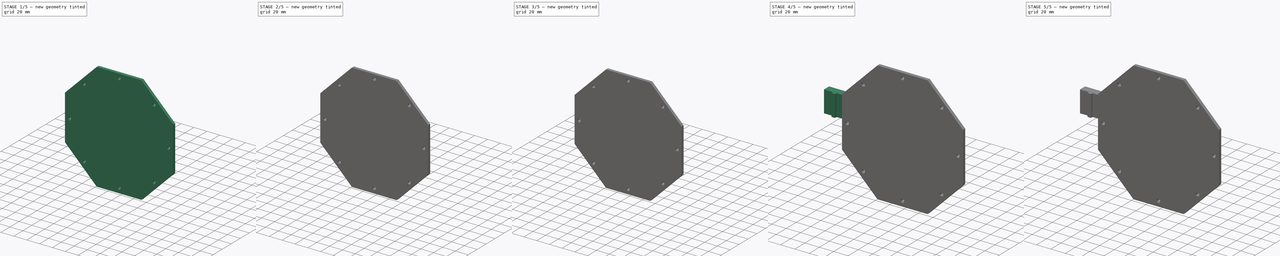
[diagram: build sequence overview — one tinted view per stage of 5, left to right]
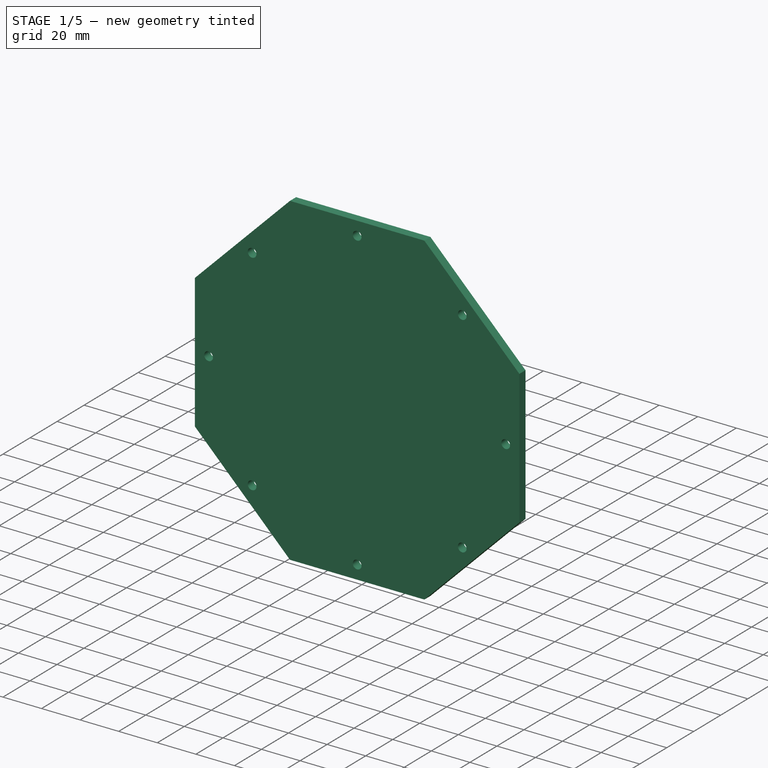
[diagram: stage 1 of 5 — iso view after this stage's code; geometry added in this stage tinted green]
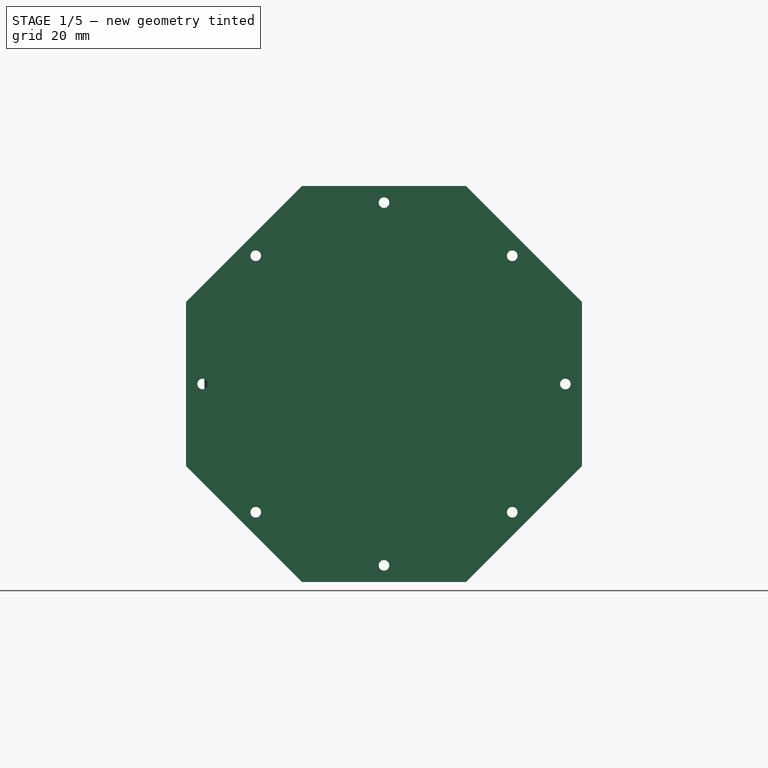
[diagram: stage 1 of 5 — front view after this stage's code; geometry added in this stage tinted green]
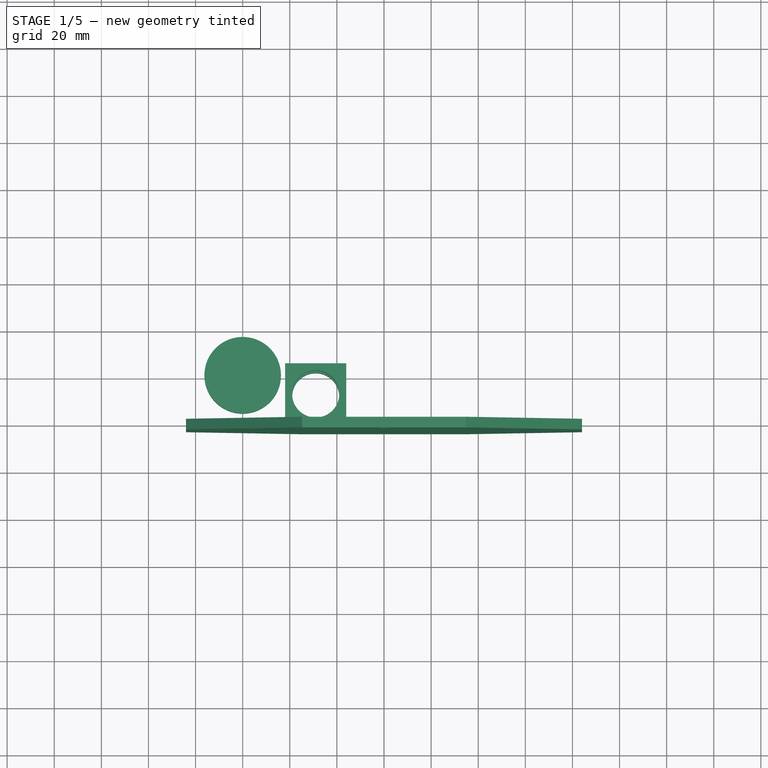
[diagram: stage 1 of 5 — top view after this stage's code; geometry added in this stage tinted green]
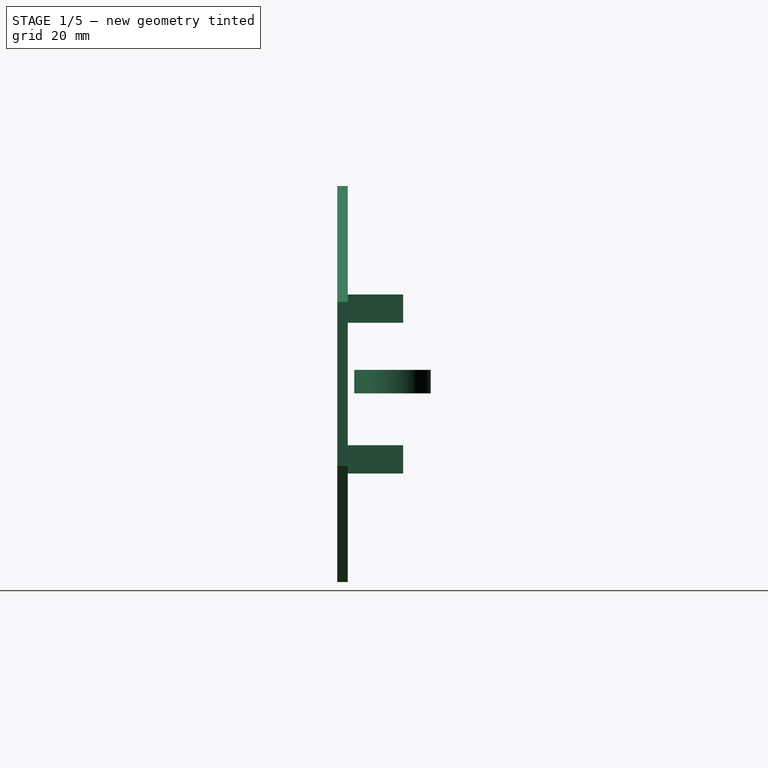
[diagram: stage 1 of 5 — right view after this stage's code; geometry added in this stage tinted green]
FCSTD DOCUMENT  (FreeCAD 0.17R13424 (Git))
Label: motor-stand2
License: All rights reserved
LicenseURL: http://en.wikipedia.org/wiki/All_rights_reserved
objects: Sketcher::SketchObject×18, Part::Extrusion×18, Part::Cut×8, Part::MultiFuse×7, Part::Cylinder×3, Part::FeaturePython×2
note: 56 computed .brp shape members not serialized (recipe doc carries the construction recipe); baked Part::Feature solids carry a one-line shape summary decoded from their .brp

FEATURE [Part::Cylinder] Cylinder001
  Angle = 360
  AttacherType = Attacher::AttachEngine3D
  Height = 10
  Placement = pos=(0,0,-4) rot=(0,0,1;0rad)
  Radius = 16.25
FEATURE [Sketcher::SketchObject] Sketch050
  sketch-geometry (5):
    g0: LineSegment StartX=-13 StartY=13 StartZ=0 EndX=-13 EndY=-15 EndZ=0
    g1: LineSegment StartX=-13 StartY=-15 StartZ=0 EndX=13 EndY=-15 EndZ=0
    g2: LineSegment StartX=13 StartY=-15 StartZ=0 EndX=13 EndY=13 EndZ=0
    g3: Circle CenterX=0 CenterY=0 CenterZ=0 NormalX=0 NormalY=0 NormalZ=1 AngleXU=0 Radius=10
    g4: LineSegment StartX=-13 StartY=13 StartZ=0 EndX=13 EndY=13 EndZ=0
  constraints (14):
    c: Coincident(g0,g1)
    c: Horizontal(g1)
    c: Coincident(g1,g2)
    c: Equal(g0,g2)
    c: DistanceY(g1,g-1) = 15
    c: Coincident(g3,g-1)
    c: Radius(g3) = 10
    c: Coincident(g4,g0)
    c: Coincident(g4,g2)
    c: Horizontal(g4)
    c: Symmetric(g2,g0,g-2)
    c: DistanceY(g0,g0) = 28
    c: DistanceX(g0,g2) = 26
    c: Equal(g1,g4)
FEATURE [Part::Extrusion] Extrude014
  Base = -> Sketch050
  Dir = (0,0,1)
  DirMode = 2
  FaceMakerClass = Part::FaceMakerBullseye
  LengthFwd = 12
  LengthRev = 0
  Placement = pos=(0,0,32) rot=(0,0,1;0rad)
  Solid = true
  Symmetric = true
FEATURE [Part::FeaturePython] Clone  label="Clone of Extrude014"  # Draft clone (typed FeaturePython)
  AttacherType = Attacher::AttachEngine3D
  Fuse = false
  Objects = -> [Extrude014]
  Placement = pos=(0,0,-32) rot=(0,0,1;0rad)
  Scale = (1,1,1)
FEATURE [Part::MultiFuse] Fusion004
  Placement = pos=(31,-8.5,0) rot=(0,0,1;0rad)
  Shapes = -> [Extrude014,Clone]
FEATURE [Sketcher::SketchObject] Sketch054
  sketch-geometry (9):
    g0: LineSegment StartX=84.073 StartY=-34.8242 StartZ=0 EndX=84.073 EndY=34.8242 EndZ=0
    g1: LineSegment StartX=84.073 StartY=34.8242 StartZ=0 EndX=34.8242 EndY=84.073 EndZ=0
    g2: LineSegment StartX=34.8242 StartY=84.073 StartZ=0 EndX=-34.8242 EndY=84.073 EndZ=0
    g3: LineSegment StartX=-34.8242 StartY=84.073 StartZ=0 EndX=-84.073 EndY=34.8242 EndZ=0
    g4: LineSegment StartX=-84.073 StartY=34.8242 StartZ=0 EndX=-84.073 EndY=-34.8242 EndZ=0
    g5: LineSegment StartX=-84.073 StartY=-34.8242 StartZ=0 EndX=-34.8242 EndY=-84.073 EndZ=0
    g6: LineSegment StartX=-34.8242 StartY=-84.073 StartZ=0 EndX=34.8242 EndY=-84.073 EndZ=0
    g7: LineSegment StartX=34.8242 StartY=-84.073 StartZ=0 EndX=84.073 EndY=-34.8242 EndZ=0
    g8: Circle [constr] CenterX=0 CenterY=0 CenterZ=0 NormalX=0 NormalY=0 NormalZ=1 AngleXU=0 Radius=91
  constraints (20):
    c: Coincident(g0,g1)
    c: Coincident(g1,g2)
    c: Coincident(g2,g3)
    c: Coincident(g3,g4)
    c: Coincident(g4,g5)
    c: Coincident(g5,g6)
    c: Coincident(g6,g7)
    c: Coincident(g7,g0)
    c: Equal(g0, g1-g7) x7
    c: PointOnObject(g0,g8)
    c: PointOnObject(g1,g8)
    c: PointOnObject(g2,g8)
    c: PointOnObject(g3,g8)
    c: PointOnObject(g4,g8)
    c: PointOnObject(g5,g8)
    c: PointOnObject(g6,g8)
    c: PointOnObject(g7,g8)
    c: Radius(g8) = 91
    c: Vertical(g0)
    c: Coincident(g8,g-1)
FEATURE [Part::Extrusion] Extrude018
  Base = -> Sketch054
  Dir = (0,0,1)
  DirMode = 2
  FaceMakerClass = Part::FaceMakerBullseye
  LengthFwd = 4.5
  LengthRev = 0
  Solid = true
  Symmetric = false
FEATURE [Part::Cylinder] Cylinder002
  Angle = 360
  AttacherType = Attacher::AttachEngine3D
  Height = 10
  Placement = pos=(-77,0,0) rot=(1,0,0;0rad)
  Radius = 2.25
FEATURE [Part::FeaturePython] Array  # Draft array (typed FeaturePython)
  Angle = 360
  ArrayType = 1
  Axis = (0,0,1)
  Base = -> Cylinder002
  Center = (0,0,0)
  Fuse = false
  IntervalAxis = (0,0,0)
  IntervalX = (1,0,0)
  IntervalY = (0,1,0)
  IntervalZ = (0,0,0)
  NumberPolar = 8
  NumberX = 2
  NumberY = 2
  NumberZ = 1
FEATURE [Part::Cut] Cut007
  Base = -> Extrude018
  Placement = pos=(60,-23.5,0) rot=(1,0,0;4.71239rad)
  Tool = -> Array
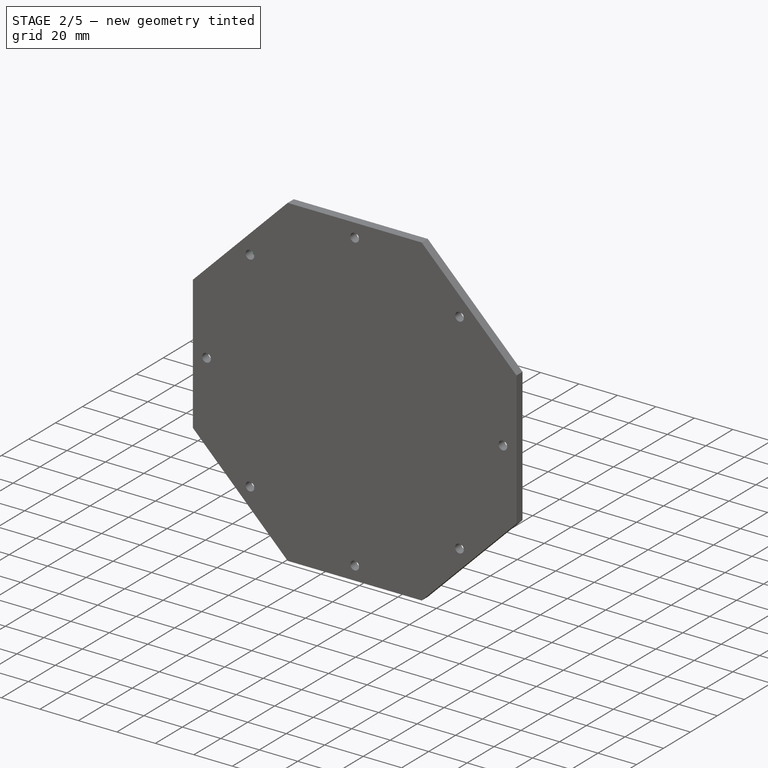
[diagram: stage 2 of 5 — iso view after this stage's code; geometry added in this stage tinted green]
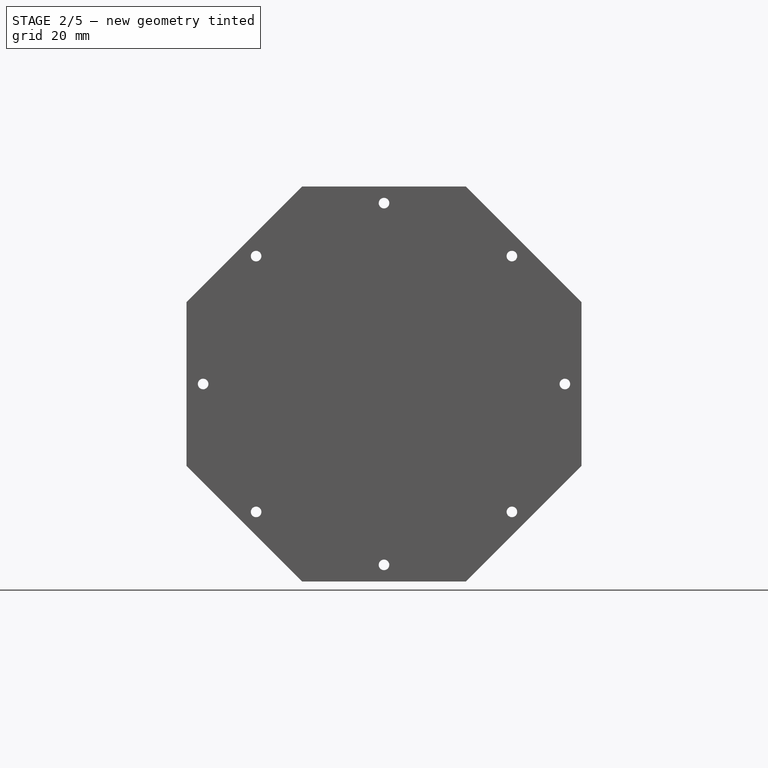
[diagram: stage 2 of 5 — front view after this stage's code; geometry added in this stage tinted green]
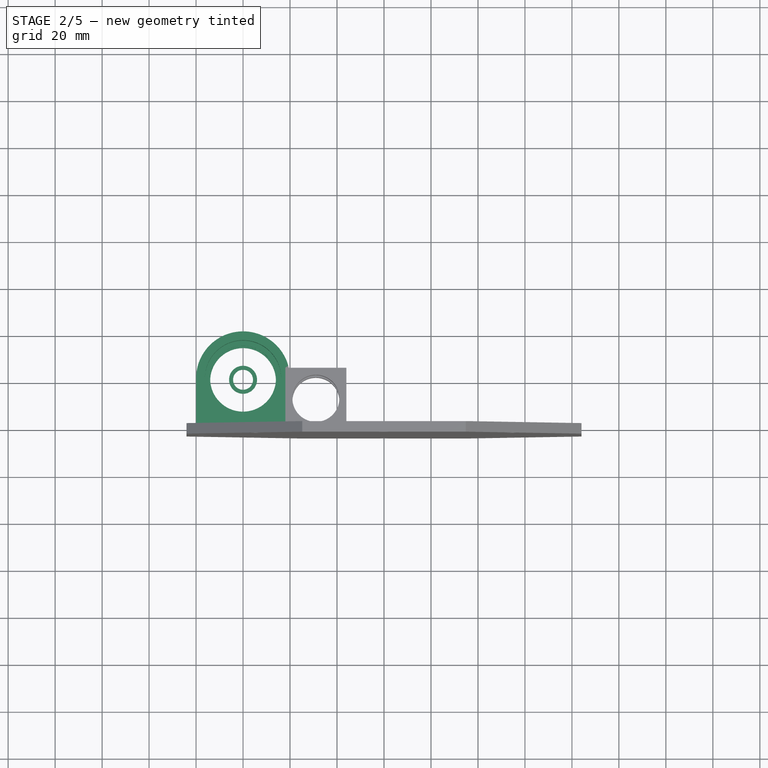
[diagram: stage 2 of 5 — top view after this stage's code; geometry added in this stage tinted green]
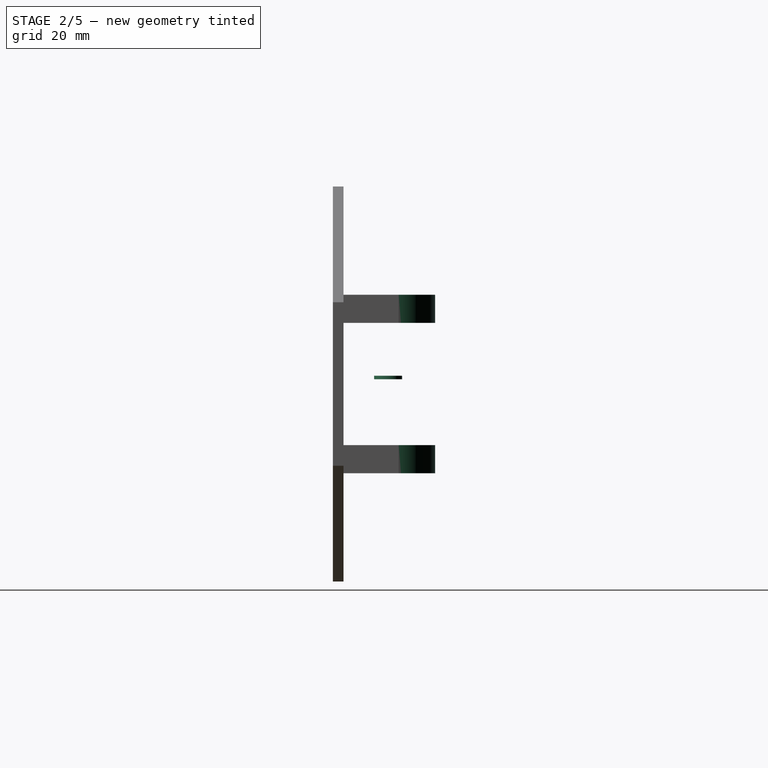
[diagram: stage 2 of 5 — right view after this stage's code; geometry added in this stage tinted green]
FEATURE [Sketcher::SketchObject] Sketch048
  MapMode = 5
  sketch-geometry (5):
    g0: ArcOfCircle CenterX=0 CenterY=0 CenterZ=0 NormalX=0 NormalY=0 NormalZ=1 AngleXU=0 Radius=20 StartAngle=0 EndAngle=3.14159
    g1: Circle CenterX=0 CenterY=0 CenterZ=0 NormalX=0 NormalY=0 NormalZ=1 AngleXU=0 Radius=14
    g2: LineSegment StartX=-20 StartY=0 StartZ=0 EndX=-20 EndY=-23.5 EndZ=0
    g3: LineSegment StartX=-20 StartY=-23.5 StartZ=0 EndX=20 EndY=-23.5 EndZ=0
    g4: LineSegment StartX=20 StartY=-23.5 StartZ=0 EndX=20 EndY=0 EndZ=0
  constraints (13):
    c: Coincident(g0,g-1)
    c: PointOnObject(g0,g-1)
    c: PointOnObject(g0,g-1)
    c: Coincident(g1,g-1)
    c: Tangent(g0,g2) = -1.5708
    c: Coincident(g2,g3)
    c: Horizontal(g3)
    c: Coincident(g3,g4)
    c: Coincident(g4,g0)
    c: Vertical(g4)
    c: Radius(g1) = 14
    c: Radius(g0) = 20
    c: DistanceY(g4,g4) = 23.5
FEATURE [Part::Extrusion] Extrude012  label="bearing-nest-l"
  Base = -> Sketch048
  Dir = (0,0,1)
  DirMode = 0
  FaceMakerClass = Part::FaceMakerExtrusion
  LengthFwd = 12
  LengthRev = 0
  Solid = true
  Symmetric = true
FEATURE [Sketcher::SketchObject] Sketch049
  MapMode = 5
  sketch-geometry (5):
    g0: ArcOfCircle CenterX=0 CenterY=0 CenterZ=0 NormalX=0 NormalY=0 NormalZ=1 AngleXU=0 Radius=20 StartAngle=0 EndAngle=3.14159
    g1: Circle CenterX=0 CenterY=0 CenterZ=0 NormalX=0 NormalY=0 NormalZ=1 AngleXU=0 Radius=14
    g2: LineSegment StartX=-20 StartY=0 StartZ=0 EndX=-20 EndY=-23.5 EndZ=0
    g3: LineSegment StartX=-20 StartY=-23.5 StartZ=0 EndX=20 EndY=-23.5 EndZ=0
    g4: LineSegment StartX=20 StartY=-23.5 StartZ=0 EndX=20 EndY=0 EndZ=0
  constraints (13):
    c: Coincident(g0,g-1)
    c: PointOnObject(g0,g-1)
    c: PointOnObject(g0,g-1)
    c: Coincident(g1,g-1)
    c: Tangent(g0,g2) = -1.5708
    c: Coincident(g2,g3)
    c: Horizontal(g3)
    c: Coincident(g3,g4)
    c: Coincident(g4,g0)
    c: Vertical(g4)
    c: Radius(g1) = 14
    c: Radius(g0) = 20
    c: DistanceY(g4,g4) = 23.5
FEATURE [Part::Extrusion] Extrude013  label="bearing-nest-r"
  Base = -> Sketch049
  Dir = (0,0,1)
  DirMode = 0
  FaceMakerClass = Part::FaceMakerExtrusion
  LengthFwd = 12
  LengthRev = 0
  Solid = true
  Symmetric = true
FEATURE [Part::Cylinder] Cylinder
  Angle = 360
  AttacherType = Attacher::AttachEngine3D
  Height = 10
  Placement = pos=(0,0,-6) rot=(0,0,1;0rad)
  Radius = 16.25
FEATURE [Part::Cut] Cut005
  Base = -> Extrude012
  Placement = pos=(0,0,-32) rot=(0,0,1;0rad)
  Tool = -> Cylinder
FEATURE [Part::Cut] Cut006
  Base = -> Extrude013
  Placement = pos=(0,0,32) rot=(0,0,1;0rad)
  Tool = -> Cylinder001
FEATURE [Sketcher::SketchObject] Sketch053
  MapMode = 5
  sketch-geometry (2):
    g0: Circle CenterX=0 CenterY=0 CenterZ=0 NormalX=0 NormalY=0 NormalZ=1 AngleXU=0 Radius=4.25
    g1: Circle CenterX=0 CenterY=0 CenterZ=0 NormalX=0 NormalY=0 NormalZ=1 AngleXU=0 Radius=5.95
  constraints (4):
    c: Coincident(g0,g-1)
    c: Coincident(g1,g-1)
    c: Radius(g0) = 4.25
    c: Radius(g1) = 5.95
FEATURE [Part::Extrusion] Extrude017
  Base = -> Sketch053
  Dir = (0,0,1)
  DirMode = 0
  FaceMakerClass = Part::FaceMakerExtrusion
  LengthFwd = 1.5
  LengthRev = 0
  Placement = pos=(0,0,2) rot=(0,0,1;0rad)
  Solid = true
  Symmetric = false
FEATURE [Part::MultiFuse] Fusion007
  Shapes = -> [Cut005,Cut006,Fusion004,Cut007]
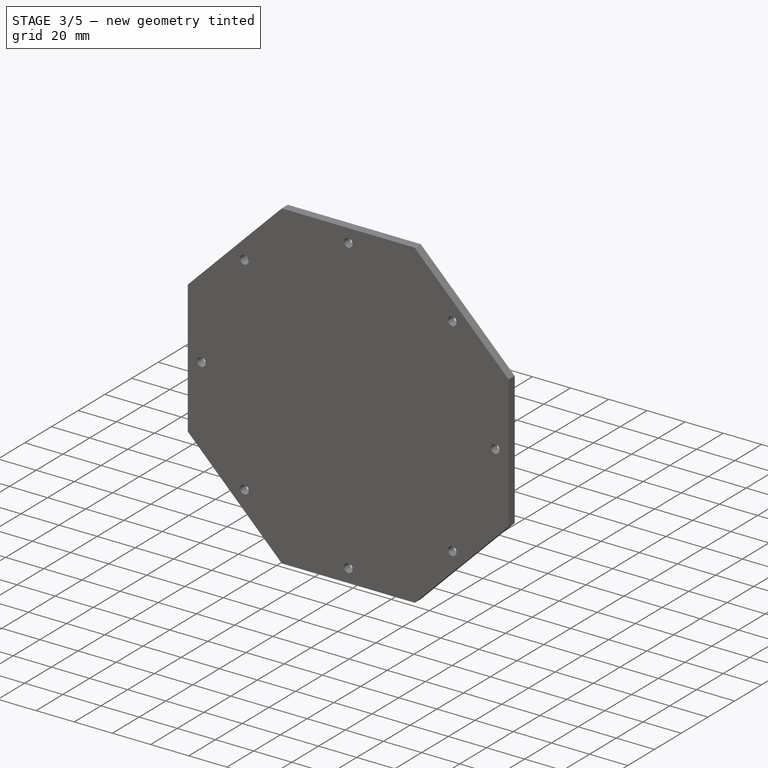
[diagram: stage 3 of 5 — iso view after this stage's code; geometry added in this stage tinted green]
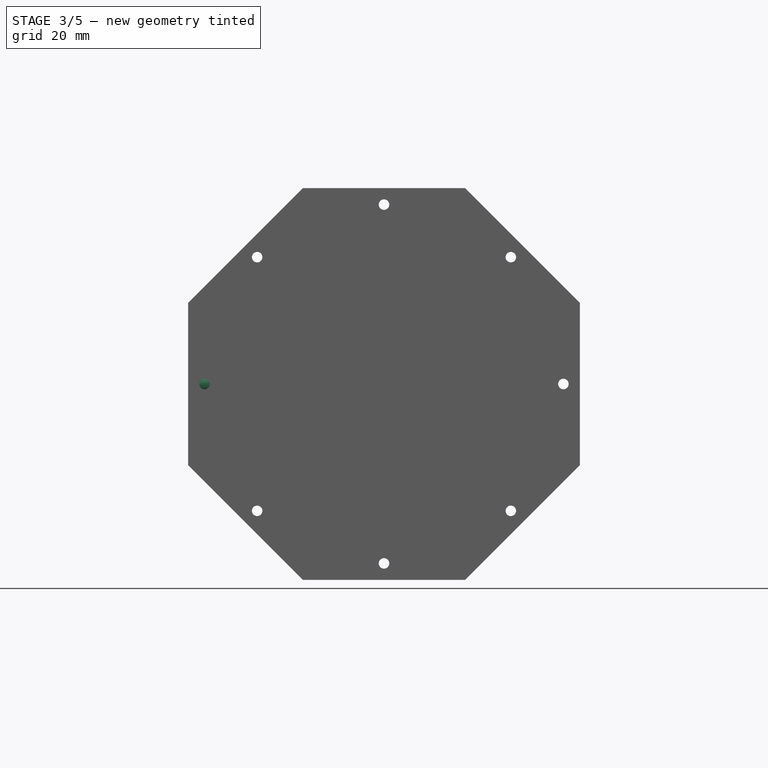
[diagram: stage 3 of 5 — front view after this stage's code; geometry added in this stage tinted green]
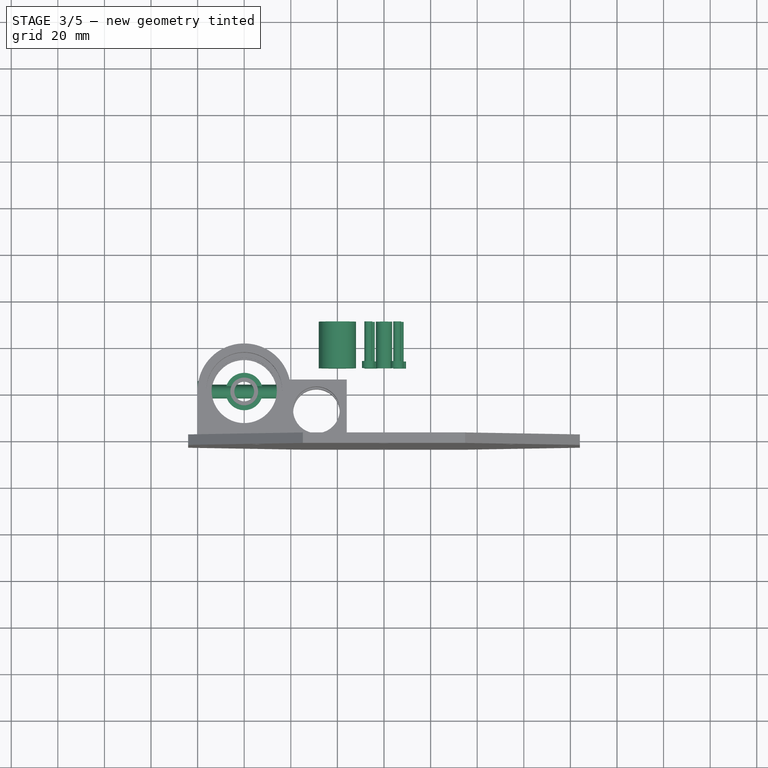
[diagram: stage 3 of 5 — top view after this stage's code; geometry added in this stage tinted green]
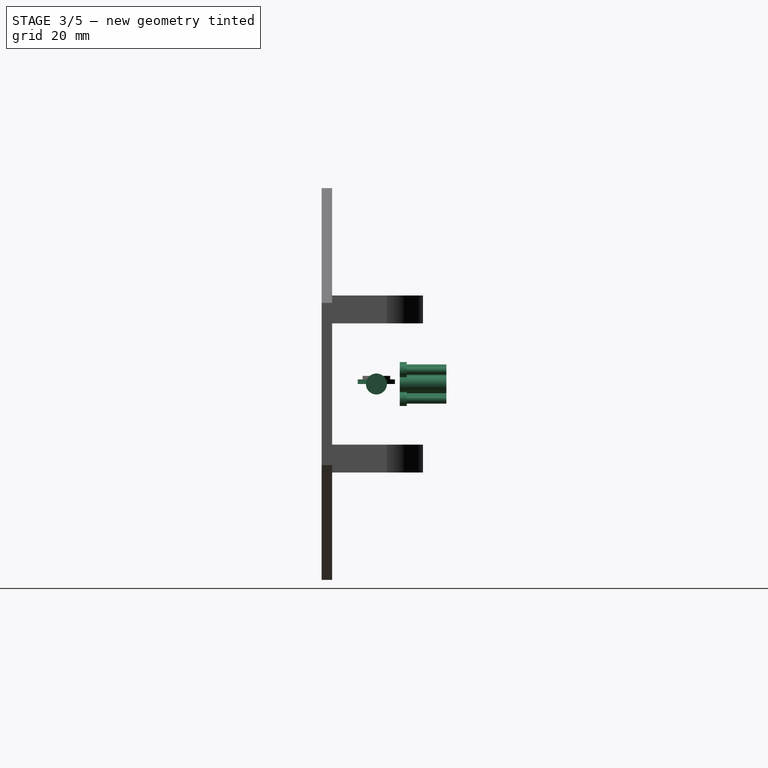
[diagram: stage 3 of 5 — right view after this stage's code; geometry added in this stage tinted green]
FEATURE [Sketcher::SketchObject] Sketch013
  MapMode = 5
  Placement = pos=(0,0,0) rot=(0.57735,0.57735,0.57735;2.0944rad)
  sketch-geometry (1):
    g0: Circle CenterX=0 CenterY=0 CenterZ=0 NormalX=0 NormalY=0 NormalZ=1 AngleXU=0 Radius=3
  constraints (2):
    c: Coincident(g0,g-1)
    c: Radius(g0) = 3
FEATURE [Part::Extrusion] Extrude008
  Base = -> Sketch013
  Dir = (1,0,0)
  DirMode = 2
  FaceMakerClass = Part::FaceMakerBullseye
  LengthFwd = 40
  LengthRev = 0
  Solid = true
  Symmetric = true
FEATURE [Sketcher::SketchObject] Sketch014
  MapMode = 5
  Placement = pos=(0,0,0) rot=(0.57735,0.57735,0.57735;2.0944rad)
  sketch-geometry (1):
    g0: Circle CenterX=0 CenterY=0 CenterZ=0 NormalX=0 NormalY=0 NormalZ=1 AngleXU=0 Radius=4.5
  constraints (2):
    c: Coincident(g0,g-1)
    c: Radius(g0) = 4.5
FEATURE [Part::Extrusion] Extrude009
  Base = -> Sketch014
  Dir = (1,0,0)
  DirMode = 2
  FaceMakerClass = Part::FaceMakerBullseye
  LengthFwd = 6
  LengthRev = 0
  Placement = pos=(14,0,0) rot=(0,0,1;0rad)
  Solid = true
  Symmetric = false
FEATURE [Sketcher::SketchObject] Sketch015
  MapMode = 5
  Placement = pos=(0,0,0) rot=(0.57735,0.57735,0.57735;2.0944rad)
  sketch-geometry (1):
    g0: Circle CenterX=0 CenterY=0 CenterZ=0 NormalX=0 NormalY=0 NormalZ=1 AngleXU=0 Radius=4.5
  constraints (2):
    c: Coincident(g0,g-1)
    c: Radius(g0) = 4.5
FEATURE [Part::Extrusion] Extrude010
  Base = -> Sketch015
  Dir = (1,0,0)
  DirMode = 2
  FaceMakerClass = Part::FaceMakerBullseye
  LengthFwd = -6
  LengthRev = 0
  Placement = pos=(-14,0,0) rot=(0,0,1;0rad)
  Solid = true
  Symmetric = false
FEATURE [Sketcher::SketchObject] Sketch046
  MapMode = 5
  sketch-geometry (8):
    g0: Circle CenterX=0 CenterY=0 CenterZ=0 NormalX=0 NormalY=0 NormalZ=1 AngleXU=0 Radius=3.5
    g1: Circle CenterX=6.71751 CenterY=6.71751 CenterZ=0 NormalX=0 NormalY=0 NormalZ=1 AngleXU=0 Radius=1.7
    g2: Circle CenterX=-6.71751 CenterY=-6.71751 CenterZ=0 NormalX=0 NormalY=0 NormalZ=1 AngleXU=0 Radius=1.7
    g3: Circle CenterX=5.65685 CenterY=-5.65685 CenterZ=0 NormalX=0 NormalY=0 NormalZ=1 AngleXU=0 Radius=1.7
    g4: Circle CenterX=-5.65685 CenterY=5.65685 CenterZ=0 NormalX=0 NormalY=0 NormalZ=1 AngleXU=0 Radius=1.7
    g5: LineSegment [constr] StartX=5.65685 StartY=-5.65685 StartZ=0 EndX=-5.65685 EndY=5.65685 EndZ=0
    g6: LineSegment [constr] StartX=-6.71751 StartY=-6.71751 StartZ=0 EndX=6.71751 EndY=6.71751 EndZ=0
    g7: Circle CenterX=-20 CenterY=0 CenterZ=0 NormalX=0 NormalY=0 NormalZ=1 AngleXU=0 Radius=8
  constraints (19):
    c: Coincident(g0,g-1)
    c: Radius(g0) = 3.5
    c: Radius(g3) = 1.7
    c: Equal(g3,g1)
    c: Equal(g3,g4)
    c: Equal(g3,g2)
    c: Symmetric(g3,g4,g-1)
    c: Symmetric(g2,g1,g-1)
    c: Distance(g2,g1) = 19
    c: Distance(g3,g4) = 16
    c: Coincident(g5,g3)
    c: Coincident(g5,g4)
    c: Coincident(g6,g1)
    c: Angle(g6,g5) = 1.5708
    c: Coincident(g2,g6)
    c: Angle(g5,g-1) = 0.785398
    c: PointOnObject(g7,g-1)
    c: Radius(g7) = 8
    c: DistanceX(g7,g-1) = 20
FEATURE [Part::Extrusion] Extrude011
  Base = -> Sketch046
  Dir = (0,0,20)
  DirMode = 0
  FaceMakerClass = Part::FaceMakerExtrusion
  LengthFwd = 0
  LengthRev = 0
  Solid = true
  Symmetric = true
FEATURE [Sketcher::SketchObject] Sketch047
  MapMode = 5
  sketch-geometry (7):
    g0: Circle CenterX=0 CenterY=0 CenterZ=0 NormalX=0 NormalY=0 NormalZ=1 AngleXU=0 Radius=3.5
    g1: Circle CenterX=6.71751 CenterY=6.71751 CenterZ=0 NormalX=0 NormalY=0 NormalZ=1 AngleXU=0 Radius=2.75
    g2: Circle CenterX=-6.71751 CenterY=-6.71751 CenterZ=0 NormalX=0 NormalY=0 NormalZ=1 AngleXU=0 Radius=2.75
    g3: Circle CenterX=5.65685 CenterY=-5.65685 CenterZ=0 NormalX=0 NormalY=0 NormalZ=1 AngleXU=0 Radius=2.75
    g4: Circle CenterX=-5.65685 CenterY=5.65685 CenterZ=0 NormalX=0 NormalY=0 NormalZ=1 AngleXU=0 Radius=2.75
    g5: LineSegment [constr] StartX=5.65685 StartY=-5.65685 StartZ=0 EndX=-5.65685 EndY=5.65685 EndZ=0
    g6: LineSegment [constr] StartX=-6.71751 StartY=-6.71751 StartZ=0 EndX=6.71751 EndY=6.71751 EndZ=0
  constraints (16):
    c: Coincident(g0,g-1)
    c: Radius(g0) = 3.5
    c: Radius(g3) = 2.75
    c: Equal(g3,g1)
    c: Equal(g3,g4)
    c: Equal(g3,g2)
    c: Symmetric(g3,g4,g-1)
    c: Symmetric(g2,g1,g-1)
    c: Distance(g2,g1) = 19
    c: Distance(g3,g4) = 16
    c: Coincident(g5,g3)
    c: Coincident(g5,g4)
    c: Coincident(g6,g1)
    c: Angle(g6,g5) = 1.5708
    c: Coincident(g2,g6)
    c: Angle(g5,g-1) = 0.785398
FEATURE [Part::Extrusion] Extrude002
  Base = -> Sketch047
  Dir = (0,0,3)
  DirMode = 0
  FaceMakerClass = Part::FaceMakerExtrusion
  LengthFwd = 0
  LengthRev = 0
  Placement = pos=(0,0,-10) rot=(0,0,1;0rad)
  Solid = true
  Symmetric = false
FEATURE [Part::MultiFuse] Fusion003
  Placement = pos=(60,20,0) rot=(-1,0,0;1.5708rad)
  Shapes = -> [Extrude002,Extrude011]
FEATURE [Sketcher::SketchObject] Sketch052
  MapMode = 5
  sketch-geometry (2):
    g0: Circle CenterX=0 CenterY=0 CenterZ=0 NormalX=0 NormalY=0 NormalZ=1 AngleXU=0 Radius=4.25
    g1: Circle CenterX=0 CenterY=0 CenterZ=0 NormalX=0 NormalY=0 NormalZ=1 AngleXU=0 Radius=8
  constraints (4):
    c: Coincident(g0,g-1)
    c: Coincident(g1,g-1)
    c: Radius(g0) = 4.25
    c: Radius(g1) = 8
FEATURE [Part::Extrusion] Extrude016
  Base = -> Sketch052
  Dir = (0,0,2)
  DirMode = 0
  FaceMakerClass = Part::FaceMakerExtrusion
  LengthFwd = 0
  LengthRev = 0
  Solid = true
  Symmetric = false
FEATURE [Part::MultiFuse] Fusion006
  Shapes = -> [Extrude017,Extrude016]
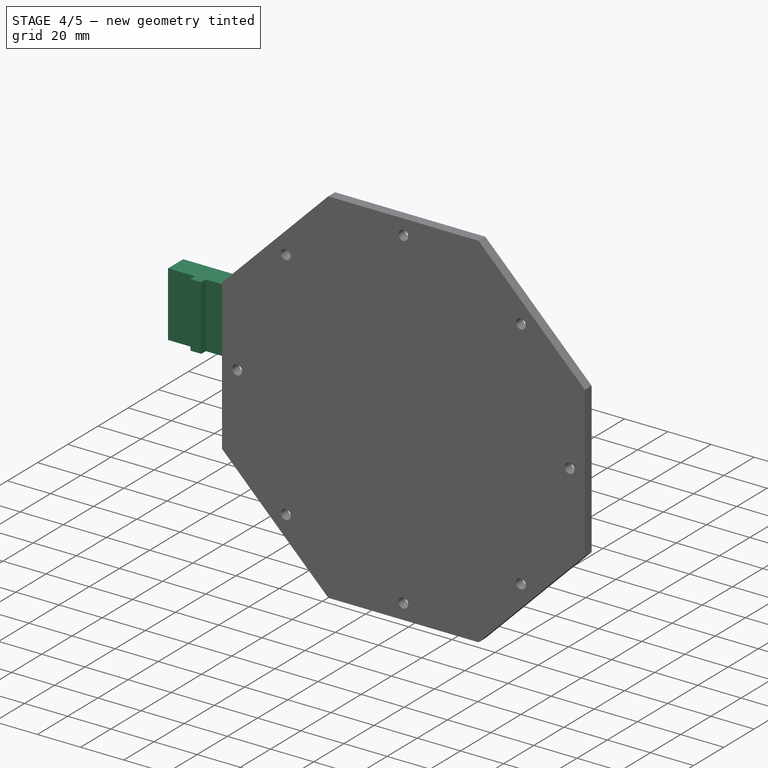
[diagram: stage 4 of 5 — iso view after this stage's code; geometry added in this stage tinted green]
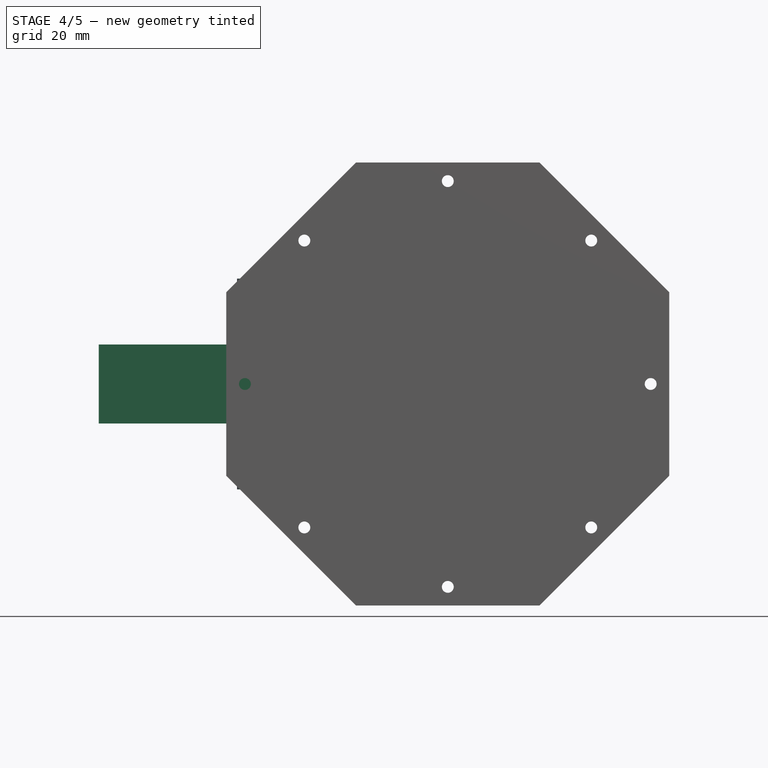
[diagram: stage 4 of 5 — front view after this stage's code; geometry added in this stage tinted green]
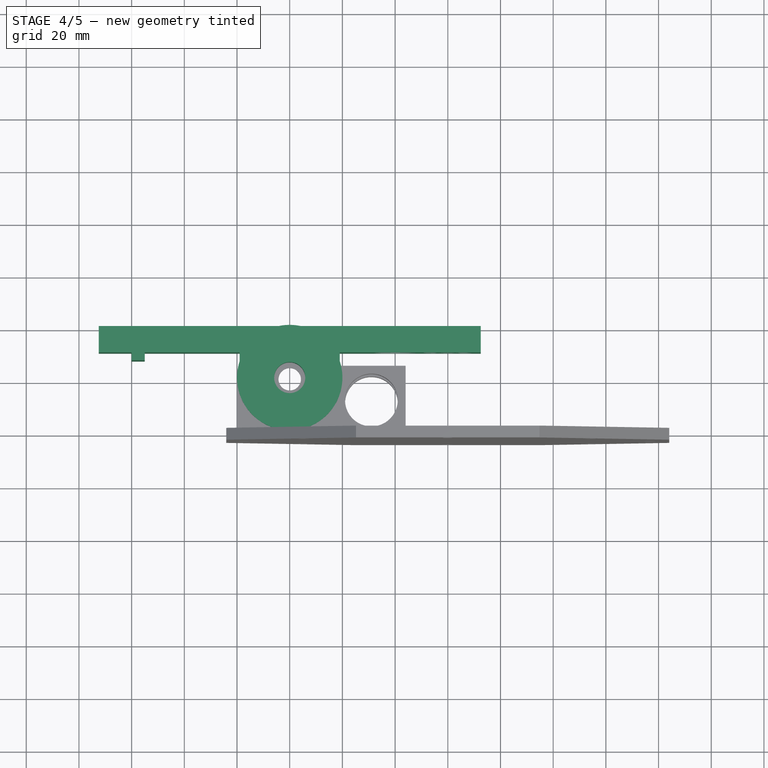
[diagram: stage 4 of 5 — top view after this stage's code; geometry added in this stage tinted green]
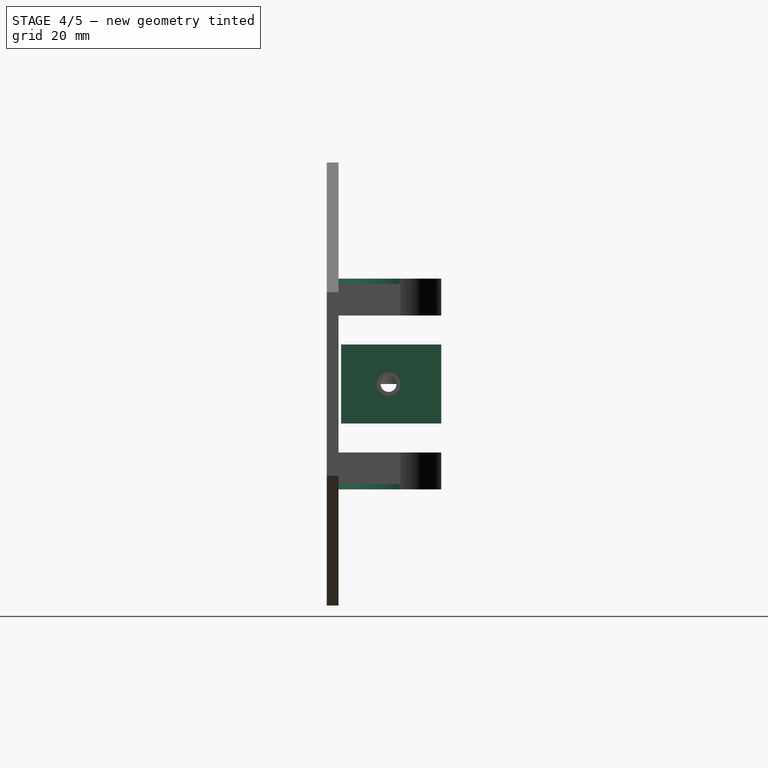
[diagram: stage 4 of 5 — right view after this stage's code; geometry added in this stage tinted green]
FEATURE [Sketcher::SketchObject] Sketch004
  MapMode = 5
  sketch-geometry (2):
    g0: Circle CenterX=0 CenterY=0 CenterZ=0 NormalX=0 NormalY=0 NormalZ=1 AngleXU=0 Radius=20
    g1: Circle CenterX=0 CenterY=0 CenterZ=0 NormalX=0 NormalY=0 NormalZ=1 AngleXU=0 Radius=5.9
  constraints (4):
    c: Coincident(g0,g-1)
    c: Coincident(g1,g-1)
    c: Radius(g1) = 5.9
    c: Radius(g0) = 20
FEATURE [Part::Extrusion] Extrude004
  Base = -> Sketch004
  Dir = (0,0,1)
  DirMode = 2
  FaceMakerClass = Part::FaceMakerExtrusion
  LengthFwd = 12
  LengthRev = 0
  Placement = pos=(0,0,28) rot=(0,0,1;0rad)
  Solid = true
  Symmetric = false
FEATURE [Sketcher::SketchObject] Sketch005
  MapMode = 5
  sketch-geometry (2):
    g0: Circle CenterX=0 CenterY=0 CenterZ=0 NormalX=0 NormalY=0 NormalZ=1 AngleXU=0 Radius=20
    g1: Circle CenterX=0 CenterY=0 CenterZ=0 NormalX=0 NormalY=0 NormalZ=1 AngleXU=0 Radius=5.9
  constraints (4):
    c: Coincident(g0,g-1)
    c: Coincident(g1,g-1)
    c: Radius(g1) = 5.9
    c: Radius(g0) = 20
FEATURE [Part::Extrusion] Extrude005
  Base = -> Sketch005
  Dir = (0,0,1)
  DirMode = 2
  FaceMakerClass = Part::FaceMakerExtrusion
  LengthFwd = -12
  LengthRev = 0
  Placement = pos=(0,0,-28) rot=(0,0,1;0rad)
  Solid = true
  Symmetric = false
FEATURE [Part::MultiFuse] Fusion001
  Shapes = -> [Extrude004,Extrude005]
FEATURE [Sketcher::SketchObject] Sketch007
  MapMode = 5
  sketch-geometry (16):
    g0: LineSegment StartX=-19 StartY=-17 StartZ=0 EndX=-19 EndY=10 EndZ=0
    g1: LineSegment StartX=-19 StartY=10 StartZ=0 EndX=-55 EndY=10 EndZ=0
    g2: LineSegment StartX=-55 StartY=10 StartZ=0 EndX=-55 EndY=7 EndZ=0
    g3: LineSegment StartX=-72.5 StartY=20 StartZ=0 EndX=72.5 EndY=20 EndZ=0
    g4: LineSegment StartX=72.5 StartY=20 StartZ=0 EndX=72.5 EndY=10 EndZ=0
    g5: LineSegment StartX=72.5 StartY=10 StartZ=0 EndX=19 EndY=10 EndZ=0
    g6: LineSegment StartX=-72.5 StartY=20 StartZ=0 EndX=-72.5 EndY=10 EndZ=0
    g7: LineSegment StartX=-72.5 StartY=10 StartZ=0 EndX=-60 EndY=10 EndZ=0
    g8: LineSegment StartX=-60 StartY=10 StartZ=0 EndX=-60 EndY=7 EndZ=0
    g9: LineSegment StartX=-60 StartY=7 StartZ=0 EndX=-55 EndY=7 EndZ=0
    g10: LineSegment StartX=19 StartY=10 StartZ=0 EndX=19 EndY=-18 EndZ=0
    g11: LineSegment StartX=-19 StartY=-17 StartZ=0 EndX=-12 EndY=-17 EndZ=0
    g12: LineSegment StartX=-12 StartY=-17 StartZ=0 EndX=-12 EndY=10 EndZ=0
    g13: LineSegment StartX=-12 StartY=10 StartZ=0 EndX=12 EndY=10 EndZ=0
    g14: LineSegment StartX=12 StartY=10 StartZ=0 EndX=12 EndY=-18 EndZ=0
    g15: LineSegment StartX=12 StartY=-18 StartZ=0 EndX=19 EndY=-18 EndZ=0
  constraints (47):
    c: Coincident(g0,g1)
    c: Horizontal(g1)
    c: Coincident(g1,g2)
    c: Coincident(g3,g4)
    c: Vertical(g4)
    c: Coincident(g4,g5)
    c: Horizontal(g5)
    c: Vertical(g0)
    c: Vertical(g2)
    c: Symmetric(g3,g3,g-2)
    c: Coincident(g3,g6)
    c: Vertical(g6)
    c: Coincident(g6,g7)
    c: Horizontal(g7)
    c: Coincident(g7,g8)
    c: Vertical(g8)
    c: Coincident(g8,g9)
    c: Coincident(g9,g2)
    c: Horizontal(g9)
    c: Equal(g6,g4)
    c: Equal(g8,g2)
    c: DistanceX(g3,g3) = 145
    c: DistanceX(g9,g9) = 5
    c: DistanceY(g8,g8) = 3
    c: DistanceY(g4,g4) = 10
    c: Symmetric(g0,g5,g-2)
    c: DistanceX(g8,g-1) = 60
    c: Coincident(g5,g10)
    c: Vertical(g10)
    c: Coincident(g0,g11)
    c: Horizontal(g11)
    c: Coincident(g11,g12)
    c: Vertical(g12)
    c: Coincident(g12,g13)
    c: Horizontal(g13)
    c: Coincident(g13,g14)
    c: Vertical(g14)
    c: Coincident(g14,g15)
    c: Coincident(g15,g10)
    c: Horizontal(g15)
    c: Equal(g11,g15)
    c: DistanceX(g11,g14) = 24
    c: DistanceX(g11,g11) = 7
    c: DistanceY(g-1,g4) = 10
    c: DistanceY(g0,g2) = 24
    c: Equal(g0,g12)
    c: DistanceY(g14,g11) = 1
FEATURE [Part::Extrusion] Extrude007
  Base = -> Sketch007
  Dir = (0,0,30)
  DirMode = 0
  FaceMakerClass = Part::FaceMakerExtrusion
  LengthFwd = 0
  LengthRev = 0
  Solid = true
  Symmetric = true
FEATURE [Part::MultiFuse] Fusion002
  Shapes = -> [Extrude008,Extrude009,Extrude010]
FEATURE [Part::Cut] Cut003
  Base = -> Extrude007
  Tool = -> Fusion002
FEATURE [Part::Cut] Cut004
  Base = -> Cut003
  Tool = -> Fusion003
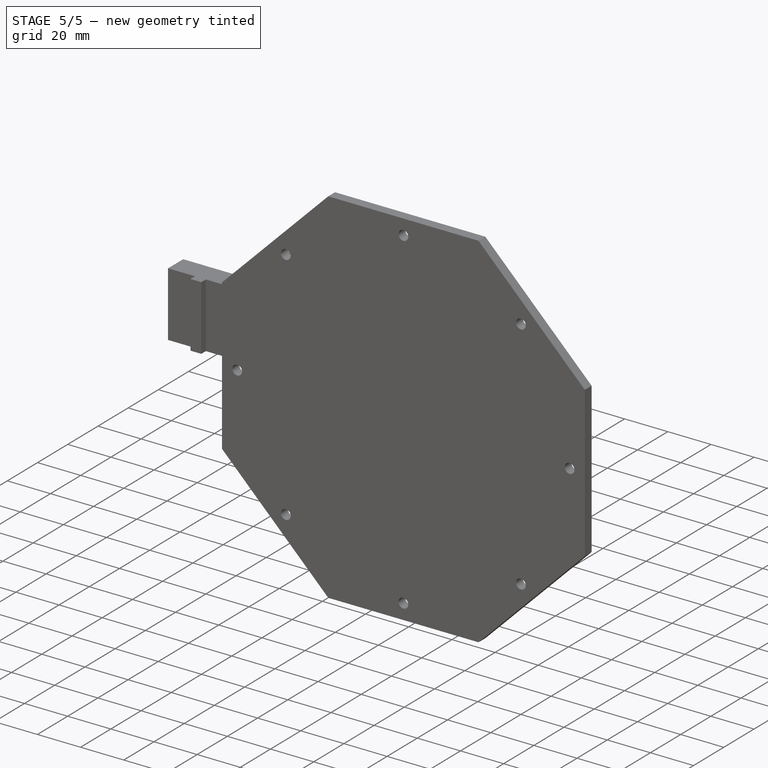
[diagram: stage 5 of 5 — iso view after this stage's code; geometry added in this stage tinted green]
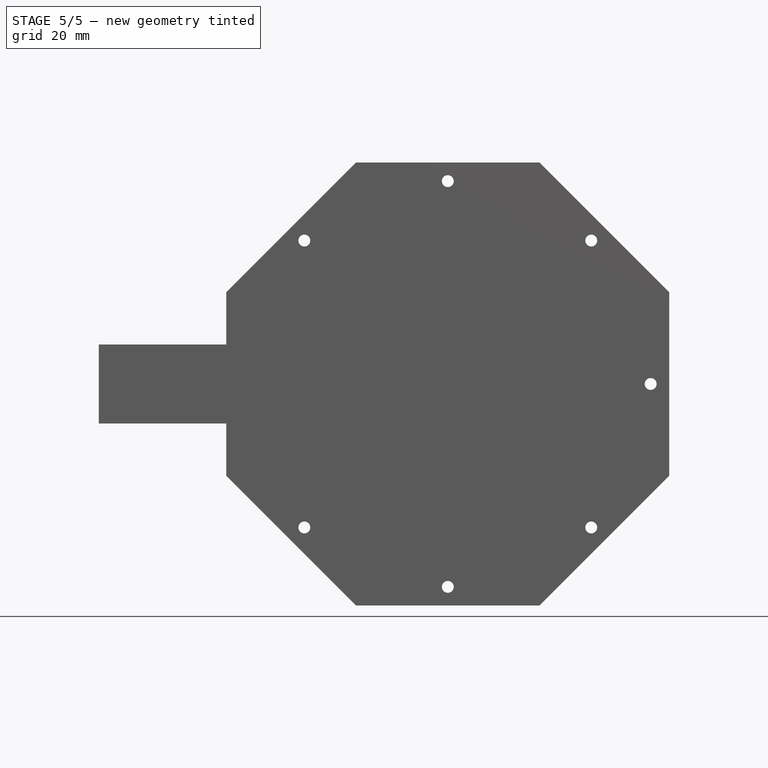
[diagram: stage 5 of 5 — front view after this stage's code; geometry added in this stage tinted green]
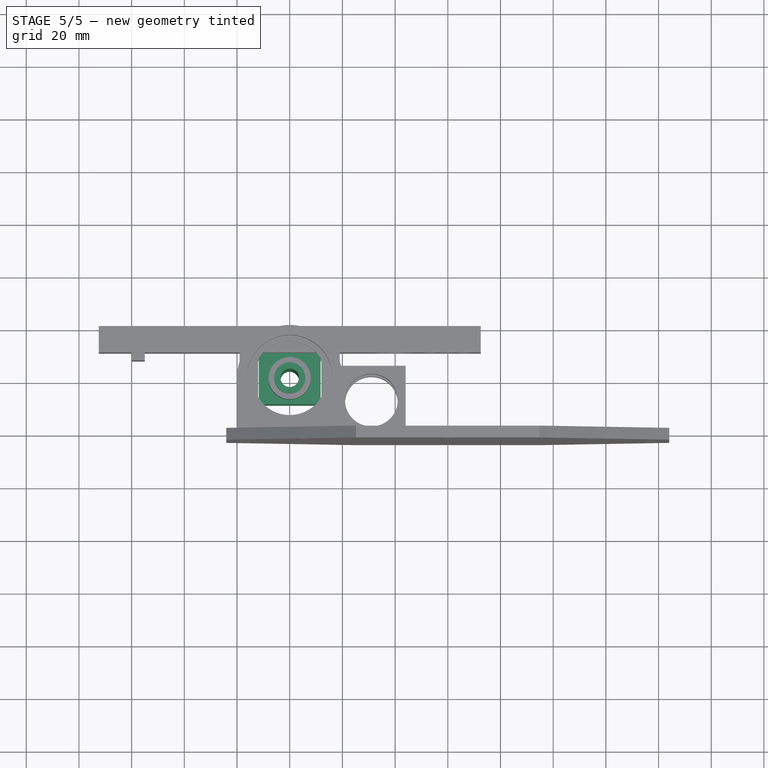
[diagram: stage 5 of 5 — top view after this stage's code; geometry added in this stage tinted green]
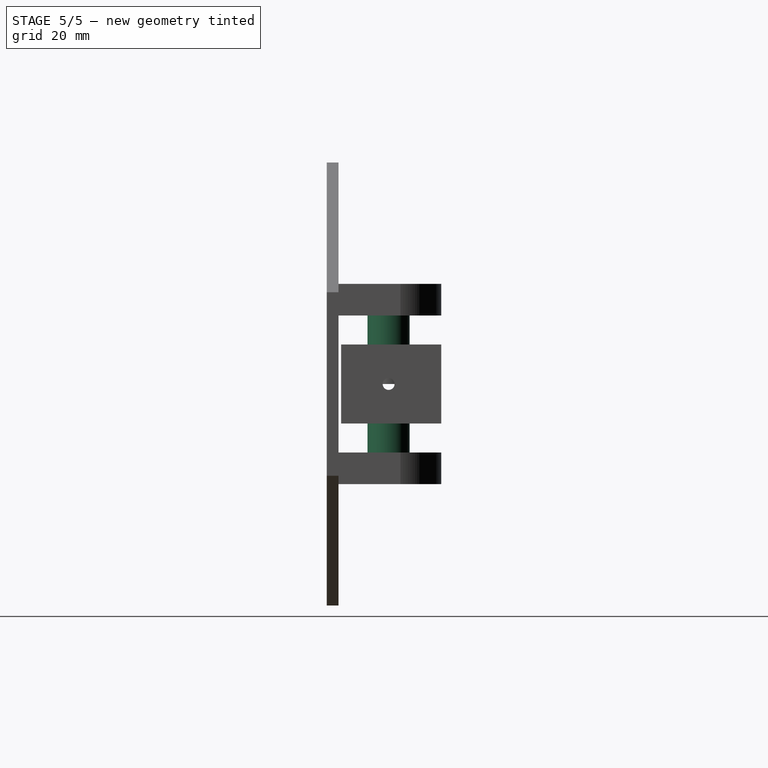
[diagram: stage 5 of 5 — right view after this stage's code; geometry added in this stage tinted green]
FEATURE [Sketcher::SketchObject] Sketch
  MapMode = 5
  sketch-geometry (2):
    g0: Circle CenterX=0 CenterY=0 CenterZ=0 NormalX=0 NormalY=0 NormalZ=1 AngleXU=0 Radius=20
    g1: Circle CenterX=0 CenterY=0 CenterZ=0 NormalX=0 NormalY=0 NormalZ=1 AngleXU=0 Radius=8
  constraints (4):
    c: Coincident(g0,g-1)
    c: Coincident(g1,g-1)
    c: Radius(g1) = 8
    c: Radius(g0) = 20
FEATURE [Part::Extrusion] Extrude
  Base = -> Sketch
  Dir = (0,0,1)
  DirMode = 2
  FaceMakerClass = Part::FaceMakerExtrusion
  LengthFwd = 21
  LengthRev = 0
  Placement = pos=(0,0,15) rot=(0,0,1;0rad)
  Solid = true
  Symmetric = false
FEATURE [Sketcher::SketchObject] Sketch001
  sketch-geometry (5):
    g0: LineSegment StartX=-11.75 StartY=9.75 StartZ=0 EndX=11.75 EndY=9.75 EndZ=0
    g1: LineSegment StartX=11.75 StartY=9.75 StartZ=0 EndX=11.75 EndY=-9.75 EndZ=0
    g2: LineSegment StartX=11.75 StartY=-9.75 StartZ=0 EndX=-11.75 EndY=-9.75 EndZ=0
    g3: LineSegment StartX=-11.75 StartY=-9.75 StartZ=0 EndX=-11.75 EndY=9.75 EndZ=0
    g4: Circle CenterX=0 CenterY=0 CenterZ=0 NormalX=0 NormalY=0 NormalZ=1 AngleXU=0 Radius=3.5
  constraints (14):
    c: Coincident(g0,g1)
    c: Coincident(g1,g2)
    c: Coincident(g2,g3)
    c: Coincident(g3,g0)
    c: Horizontal(g0)
    c: Horizontal(g2)
    c: Vertical(g1)
    c: Vertical(g3)
    c: Symmetric(g0,g2,g-1)
    c: Symmetric(g0,g0,g-2)
    c: DistanceX(g2,g2) = 23.5
    c: Coincident(g4,g-1)
    c: Radius(g4) = 3.5
    c: DistanceY(g1,g1) = 19.5
FEATURE [Part::Extrusion] Extrude001
  Base = -> Sketch001
  Dir = (0,0,1)
  DirMode = 2
  FaceMakerClass = Part::FaceMakerBullseye
  LengthFwd = 72
  LengthRev = 0
  Solid = true
  Symmetric = true
FEATURE [Sketcher::SketchObject] Sketch003
  MapMode = 5
  sketch-geometry (2):
    g0: Circle CenterX=0 CenterY=0 CenterZ=0 NormalX=0 NormalY=0 NormalZ=1 AngleXU=0 Radius=20
    g1: Circle CenterX=0 CenterY=0 CenterZ=0 NormalX=0 NormalY=0 NormalZ=1 AngleXU=0 Radius=8
  constraints (4):
    c: Coincident(g0,g-1)
    c: Coincident(g1,g-1)
    c: Radius(g1) = 8
    c: Radius(g0) = 20
FEATURE [Part::Extrusion] Extrude003
  Base = -> Sketch003
  Dir = (0,0,1)
  DirMode = 2
  FaceMakerClass = Part::FaceMakerExtrusion
  LengthFwd = -21
  LengthRev = 0
  Placement = pos=(0,0,-15) rot=(0,0,1;0rad)
  Solid = true
  Symmetric = false
FEATURE [Part::MultiFuse] Fusion
  Shapes = -> [Extrude,Extrude003]
FEATURE [Part::Cut] Cut
  Base = -> Extrude001
  Tool = -> Fusion
FEATURE [Part::Cut] Cut001
  Base = -> Cut
  Tool = -> Fusion001
FEATURE [Sketcher::SketchObject] Sketch006
  MapMode = 5
  Placement = pos=(11.75,0,0) rot=(0.57735,0.57735,0.57735;2.0944rad)
  Support = -> [Cut001]
  sketch-geometry (1):
    g0: Circle CenterX=0 CenterY=0 CenterZ=0 NormalX=0 NormalY=0 NormalZ=1 AngleXU=0 Radius=2.25
  constraints (2):
    c: Coincident(g0,g-1)
    c: Radius(g0) = 2.25
FEATURE [Part::Extrusion] Extrude006
  Base = -> Sketch006
  Dir = (1,0,0)
  DirMode = 2
  FaceMakerClass = Part::FaceMakerBullseye
  LengthFwd = -30
  LengthRev = 0
  Solid = true
  Symmetric = false
FEATURE [Part::Cut] Cut002
  Base = -> Cut001
  Tool = -> Extrude006
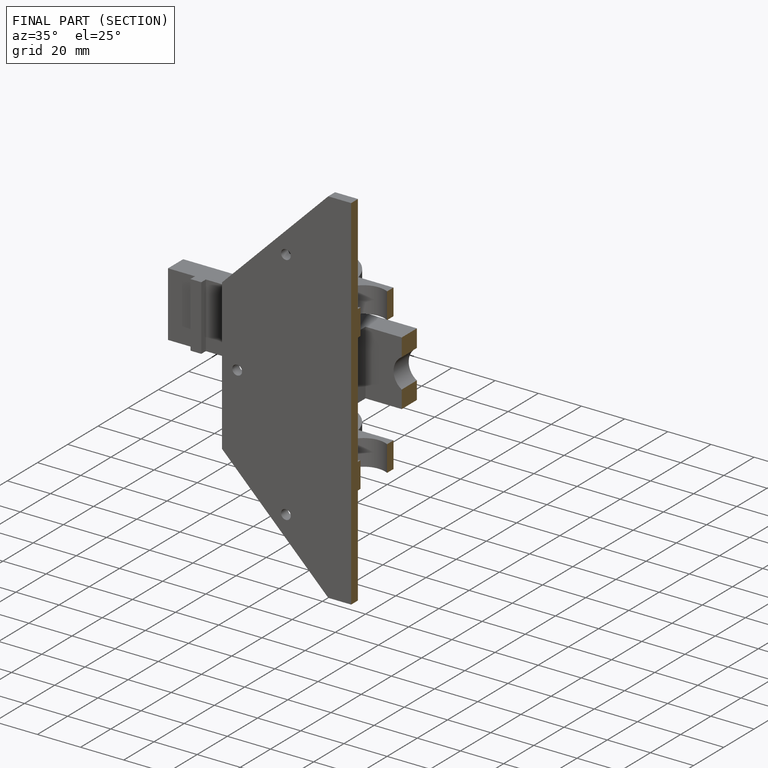
[diagram: finished part — half-section view (interior)]
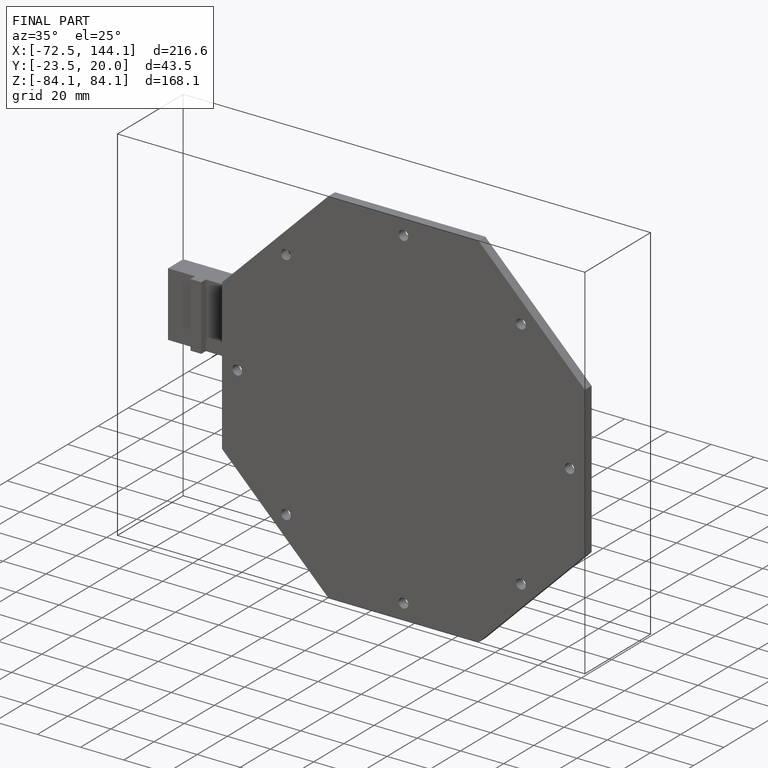
[diagram: finished part — iso view with bounding-box wireframe]
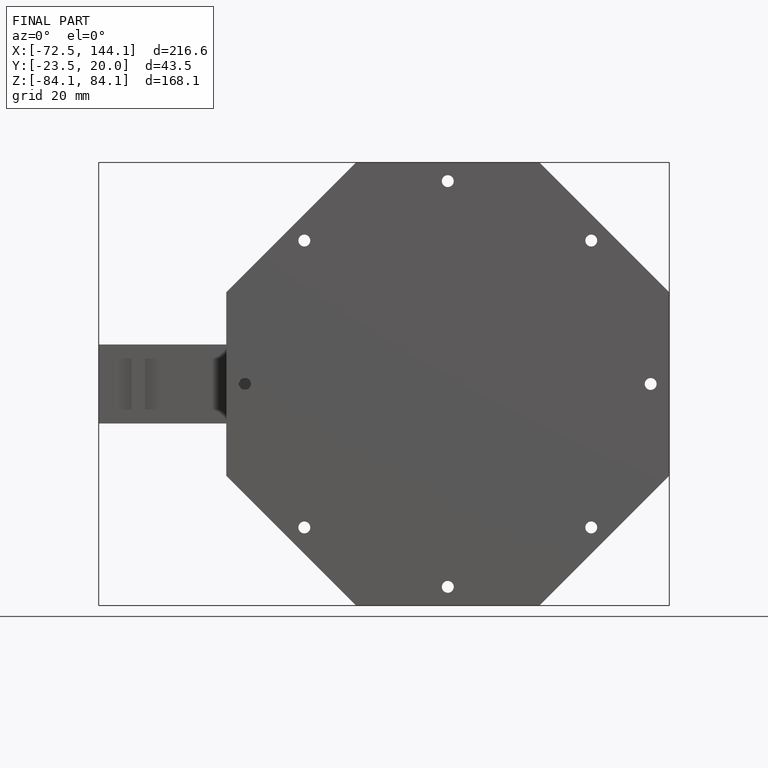
[diagram: finished part — front view with bounding-box wireframe]
